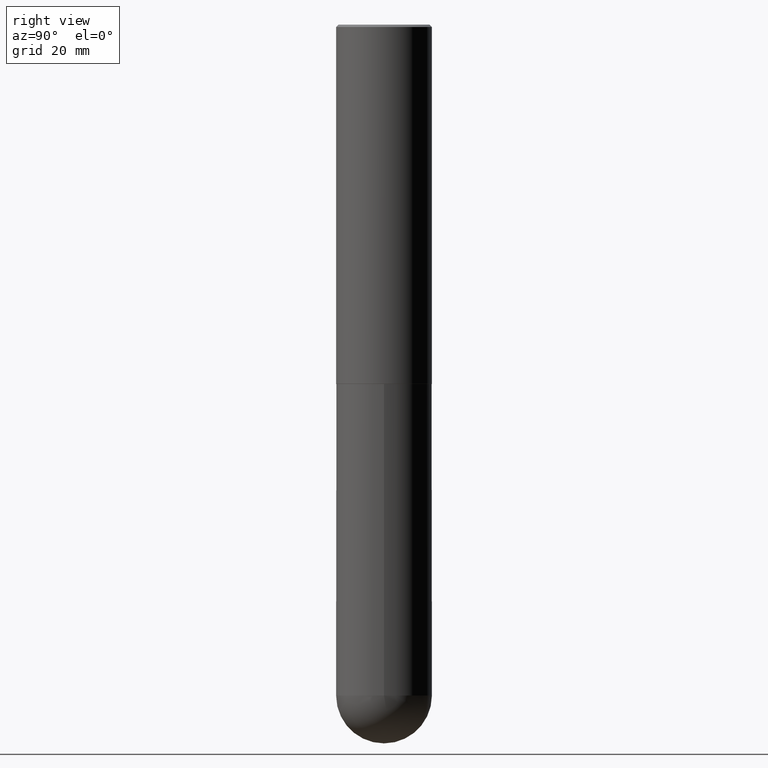
[diagram: clean part render]
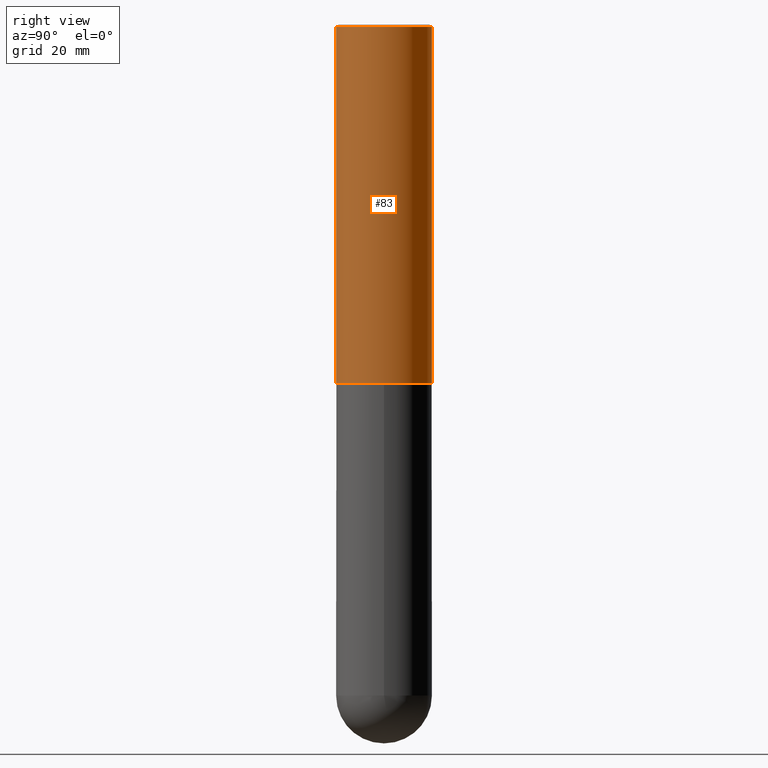
[diagram: same view with one face highlighted and labeled with its STEP entity id]
A machine part, right view. The second image highlights one B-rep face of the part: STEP entity #83.
In plain terms, the highlighted cylindrical surface (partial cylindrical patch) has radius 10 mm, axis along (-0, 0, 1).
Its self-contained STEP definition (entity closure, byte-faithful):
#12 = CARTESIAN_POINT ( 'NONE',  ( 2.797406750687515181E-15, 0.3937000000000001609, -1.374461349052444348E-15 ) ) ;
#18 = VERTEX_POINT ( 'NONE', #84 ) ;
#47 = CARTESIAN_POINT ( 'NONE',  ( -2.749192406205012614E-15, -0.3937000000000105970, -2.951699999999998436 ) ) ;
#50 = EDGE_CURVE ( 'NONE', #18, #64, #402, .T. ) ;
#54 = VERTEX_POINT ( 'NONE', #47 ) ;
#57 = CARTESIAN_POINT ( 'NONE',  ( 7.218996284668997343E-29, -1.030479442214401424E-14, -2.951700000000000212 ) ) ;
#64 = VERTEX_POINT ( 'NONE', #102 ) ;
#83 = ADVANCED_FACE ( 'NONE', ( #130 ), #374, .T. ) ;
#84 = CARTESIAN_POINT ( 'NONE',  ( 2.797406750687551863E-15, 0.3936999999999900024, -2.951700000000001545 ) ) ;
#102 = CARTESIAN_POINT ( 'NONE',  ( 2.749192406205083217E-15, 0.3936999999999999389, -0.02000000000000146452 ) ) ;
#103 = CIRCLE ( 'NONE', #207, 0.3937000000000002720 ) ;
#108 = AXIS2_PLACEMENT_3D ( 'NONE', #371, #227, #376 ) ;
#130 = FACE_OUTER_BOUND ( 'NONE', #347, .T. ) ;
#147 = EDGE_CURVE ( 'NONE', #54, #18, #103, .T. ) ;
#151 = ORIENTED_EDGE ( 'NONE', *, *, #174, .F. ) ;
#157 = ORIENTED_EDGE ( 'NONE', *, *, #147, .T. ) ;
#164 = CIRCLE ( 'NONE', #408, 0.3937000000000000499 ) ;
#174 = EDGE_CURVE ( 'NONE', #54, #259, #211, .T. ) ;
#197 = ORIENTED_EDGE ( 'NONE', *, *, #348, .F. ) ;
#207 = AXIS2_PLACEMENT_3D ( 'NONE', #57, #319, #226 ) ;
#211 = LINE ( 'NONE', #329, #243 ) ;
#226 = DIRECTION ( 'NONE',  ( -6.982962677686265922E-15, -1.000000000000000000, 4.163344669033672479E-15 ) ) ;
#227 = DIRECTION ( 'NONE',  ( -2.445707993586407058E-29, 3.491138808870824878E-15, 1.000000000000000000 ) ) ;
#240 = CARTESIAN_POINT ( 'NONE',  ( 4.891415987172836711E-31, -6.982277617741682099E-17, -0.02000000000000009062 ) ) ;
#243 = VECTOR ( 'NONE', #361, 39.37007874015748143 ) ;
#254 = ORIENTED_EDGE ( 'NONE', *, *, #50, .T. ) ;
#259 = VERTEX_POINT ( 'NONE', #343 ) ;
#319 = DIRECTION ( 'NONE',  ( -2.445707993586407058E-29, 3.491138808870824878E-15, 1.000000000000000000 ) ) ;
#329 = CARTESIAN_POINT ( 'NONE',  ( -2.749192406205084005E-15, -0.3937000000000001609, 1.374461349052444348E-15 ) ) ;
#334 = VECTOR ( 'NONE', #399, 39.37007874015748143 ) ;
#341 = DIRECTION ( 'NONE',  ( -2.445707993586407058E-29, 3.491138808870824878E-15, 1.000000000000000000 ) ) ;
#343 = CARTESIAN_POINT ( 'NONE',  ( -2.700978061722651252E-15, -0.3937000000000001054, -0.01999999999999871672 ) ) ;
#347 = EDGE_LOOP ( 'NONE', ( #157, #254, #197, #151 ) ) ;
#348 = EDGE_CURVE ( 'NONE', #259, #64, #164, .T. ) ;
#361 = DIRECTION ( 'NONE',  ( -2.445707993586407338E-29, 3.491138808870824484E-15, 1.000000000000000000 ) ) ;
#371 = CARTESIAN_POINT ( 'NONE',  ( 0.000000000000000000, 0.000000000000000000, 0.000000000000000000 ) ) ;
#374 = CYLINDRICAL_SURFACE ( 'NONE', #108, 0.3937000000000001609 ) ;
#376 = DIRECTION ( 'NONE',  ( -6.982962677686265922E-15, -1.000000000000000000, 3.491138808870824878E-15 ) ) ;
#399 = DIRECTION ( 'NONE',  ( -2.445707993586407338E-29, 3.491138808870824484E-15, 1.000000000000000000 ) ) ;
#402 = LINE ( 'NONE', #12, #334 ) ;
#408 = AXIS2_PLACEMENT_3D ( 'NONE', #240, #341, #409 ) ;
#409 = DIRECTION ( 'NONE',  ( -6.982962677686265133E-15, -1.000000000000000000, 3.491137977679279424E-15 ) ) ;